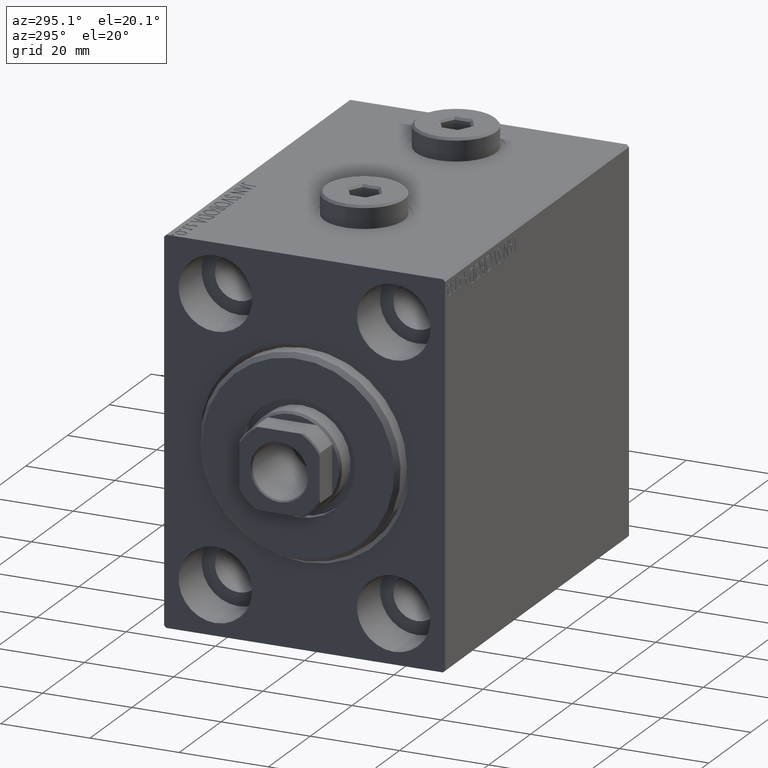
[diagram: clean part render]
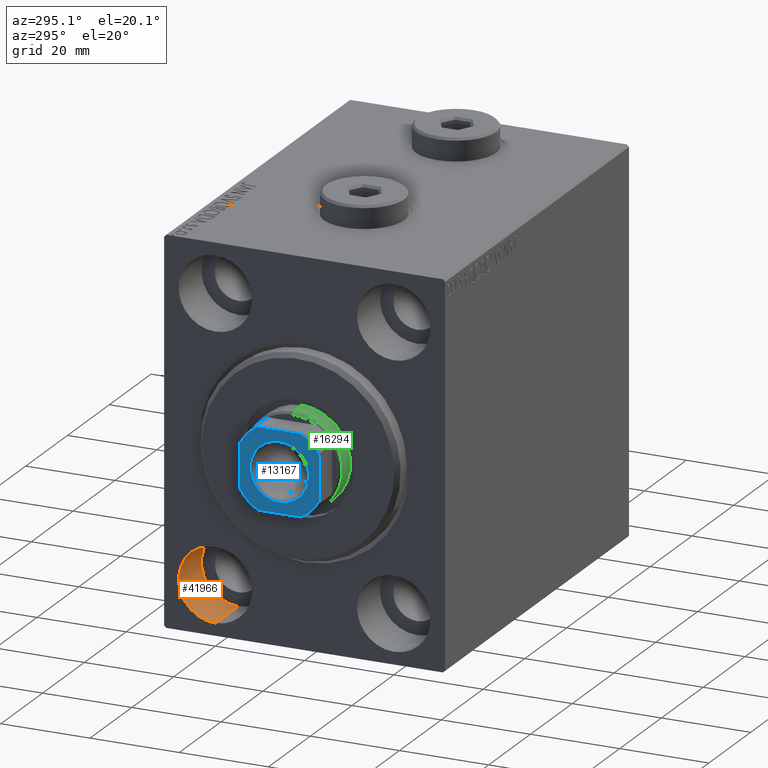
[diagram: same view with three faces highlighted in distinct colors, each labeled with its STEP entity id]
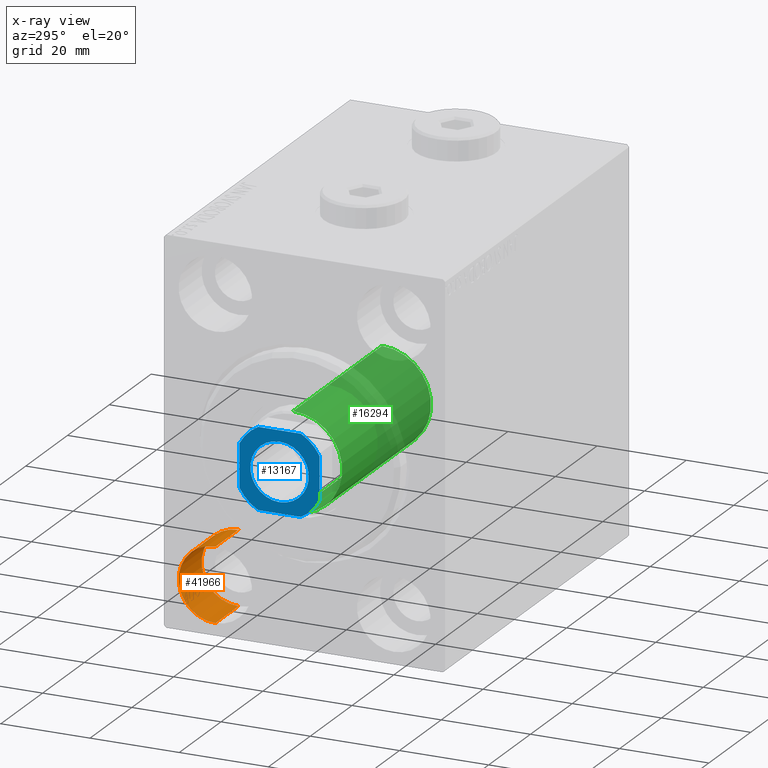
[diagram: x-ray of the same camera — body ghosted, the three highlighted faces saturated]
A machine part, auxiliary view with three faces highlighted in distinct colors.
The next image is the same camera in x-ray (body ghosted, the three faces saturated) — at least one of them is partly hidden behind the body in this view.
Their STEP definitions:

[orange] entity #41966 — the highlighted cylindrical surface (partial cylindrical patch) has radius 8.25 mm, axis along (-1, -0, -0).
#1144 = CARTESIAN_POINT ( 'NONE',  ( 11.00000000000000000, 19.99999999999999645, -39.74999999999999289 ) ) ;
#1146 = AXIS2_PLACEMENT_3D ( 'NONE', #37431, #23502, #33120 ) ;
#1193 = CARTESIAN_POINT ( 'NONE',  ( 0.000000000000000000, 19.99999999999999645, -23.24999999999999289 ) ) ;
#1728 = CYLINDRICAL_SURFACE ( 'NONE', #15350, 8.250000000000000000 ) ;
#3693 = VERTEX_POINT ( 'NONE', #40290 ) ;
#4302 = DIRECTION ( 'NONE',  ( -1.000000000000000000, 0.000000000000000000, 0.000000000000000000 ) ) ;
#5246 = LINE ( 'NONE', #36774, #18973 ) ;
#8792 = DIRECTION ( 'NONE',  ( -1.000000000000000000, -0.000000000000000000, -0.000000000000000000 ) ) ;
#11644 = DIRECTION ( 'NONE',  ( -1.000000000000000000, -0.000000000000000000, -0.000000000000000000 ) ) ;
#13720 = DIRECTION ( 'NONE',  ( -1.000000000000000000, -0.000000000000000000, -0.000000000000000000 ) ) ;
#14954 = EDGE_CURVE ( 'NONE', #20004, #41647, #36908, .T. ) ;
#15350 = AXIS2_PLACEMENT_3D ( 'NONE', #15664, #8792, #28712 ) ;
#15664 = CARTESIAN_POINT ( 'NONE',  ( 11.00000000000000000, 19.99999999999999645, -31.49999999999999289 ) ) ;
#16808 = VERTEX_POINT ( 'NONE', #1193 ) ;
#17660 = ORIENTED_EDGE ( 'NONE', *, *, #18151, .T. ) ;
#18151 = EDGE_CURVE ( 'NONE', #16808, #3693, #28283, .T. ) ;
#18634 = CARTESIAN_POINT ( 'NONE',  ( 11.00000000000000000, 19.99999999999999645, -23.24999999999999289 ) ) ;
#18973 = VECTOR ( 'NONE', #11644, 1000.000000000000000 ) ;
#19479 = ORIENTED_EDGE ( 'NONE', *, *, #14954, .F. ) ;
#20004 = VERTEX_POINT ( 'NONE', #18634 ) ;
#20338 = EDGE_LOOP ( 'NONE', ( #27263, #19479, #41446, #17660 ) ) ;
#23502 = DIRECTION ( 'NONE',  ( -1.000000000000000000, 0.000000000000000000, 0.000000000000000000 ) ) ;
#25115 = DIRECTION ( 'NONE',  ( 0.000000000000000000, 0.000000000000000000, 1.000000000000000000 ) ) ;
#27263 = ORIENTED_EDGE ( 'NONE', *, *, #40655, .F. ) ;
#28283 = CIRCLE ( 'NONE', #37768, 8.250000000000000000 ) ;
#28574 = VECTOR ( 'NONE', #13720, 1000.000000000000000 ) ;
#28712 = DIRECTION ( 'NONE',  ( 0.000000000000000000, 0.000000000000000000, 1.000000000000000000 ) ) ;
#30655 = CARTESIAN_POINT ( 'NONE',  ( 11.00000000000000000, 19.99999999999999645, -23.24999999999999289 ) ) ;
#33043 = FACE_OUTER_BOUND ( 'NONE', #20338, .T. ) ;
#33120 = DIRECTION ( 'NONE',  ( 0.000000000000000000, 0.000000000000000000, 1.000000000000000000 ) ) ;
#36774 = CARTESIAN_POINT ( 'NONE',  ( 11.00000000000000000, 19.99999999999999645, -39.74999999999999289 ) ) ;
#36908 = CIRCLE ( 'NONE', #1146, 8.250000000000000000 ) ;
#37431 = CARTESIAN_POINT ( 'NONE',  ( 11.00000000000000000, 19.99999999999999645, -31.49999999999999289 ) ) ;
#37768 = AXIS2_PLACEMENT_3D ( 'NONE', #42922, #4302, #25115 ) ;
#40290 = CARTESIAN_POINT ( 'NONE',  ( 0.000000000000000000, 19.99999999999999645, -39.74999999999999289 ) ) ;
#40655 = EDGE_CURVE ( 'NONE', #41647, #3693, #5246, .T. ) ;
#41446 = ORIENTED_EDGE ( 'NONE', *, *, #43911, .T. ) ;
#41647 = VERTEX_POINT ( 'NONE', #1144 ) ;
#41966 = ADVANCED_FACE ( 'NONE', ( #33043 ), #1728, .F. ) ;
#42922 = CARTESIAN_POINT ( 'NONE',  ( 0.000000000000000000, 19.99999999999999645, -31.49999999999999289 ) ) ;
#43911 = EDGE_CURVE ( 'NONE', #20004, #16808, #45030, .T. ) ;
#45030 = LINE ( 'NONE', #30655, #28574 ) ;

[blue] entity #13167 — the highlighted planar face has unit normal (-1, 0, 0).
#8 = CARTESIAN_POINT ( 'NONE',  ( 0.000000000000000000, 0.000000000000000000, 88.00000000000000000 ) ) ;
#196 = DIRECTION ( 'NONE',  ( -1.000000000000000000, -0.000000000000000000, -0.000000000000000000 ) ) ;
#1023 = ORIENTED_EDGE ( 'NONE', *, *, #12149, .T. ) ;
#1041 = FACE_BOUND ( 'NONE', #23882, .T. ) ;
#1279 = AXIS2_PLACEMENT_3D ( 'NONE', #8, #21484, #4100 ) ;
#2140 = ORIENTED_EDGE ( 'NONE', *, *, #23702, .T. ) ;
#2188 = DIRECTION ( 'NONE',  ( 1.927470528863119049E-16, -1.000000000000000000, 0.000000000000000000 ) ) ;
#2948 = DIRECTION ( 'NONE',  ( 1.000000000000000000, 0.000000000000000000, 0.000000000000000000 ) ) ;
#3497 = AXIS2_PLACEMENT_3D ( 'NONE', #44769, #29939, #2948 ) ;
#3634 = CARTESIAN_POINT ( 'NONE',  ( -9.000000000000001776, 8.999999999999998224, 88.00000000000000000 ) ) ;
#3878 = ORIENTED_EDGE ( 'NONE', *, *, #40808, .T. ) ;
#4100 = DIRECTION ( 'NONE',  ( 1.000000000000000000, 0.000000000000000000, 0.000000000000000000 ) ) ;
#4151 = AXIS2_PLACEMENT_3D ( 'NONE', #4780, #11862, #29704 ) ;
#4780 = CARTESIAN_POINT ( 'NONE',  ( 0.000000000000000000, 0.000000000000000000, 88.00000000000000000 ) ) ;
#4800 = VERTEX_POINT ( 'NONE', #8693 ) ;
#5179 = EDGE_CURVE ( 'NONE', #5378, #26426, #9775, .T. ) ;
#5378 = VERTEX_POINT ( 'NONE', #33457 ) ;
#5577 = CARTESIAN_POINT ( 'NONE',  ( -9.000000000000001776, 4.800000000000007816, 88.00000000000000000 ) ) ;
#5983 = VERTEX_POINT ( 'NONE', #20487 ) ;
#7192 = VERTEX_POINT ( 'NONE', #5577 ) ;
#7218 = DIRECTION ( 'NONE',  ( -0.000000000000000000, 0.000000000000000000, 1.000000000000000000 ) ) ;
#8352 = PLANE ( 'NONE',  #23746 ) ;
#8424 = LINE ( 'NONE', #39748, #28126 ) ;
#8575 = DIRECTION ( 'NONE',  ( -0.000000000000000000, 0.000000000000000000, 1.000000000000000000 ) ) ;
#8693 = CARTESIAN_POINT ( 'NONE',  ( 4.799999999999974065, -9.000000000000001776, 88.00000000000000000 ) ) ;
#9773 = CIRCLE ( 'NONE', #42615, 10.19999999999998863 ) ;
#9775 = CIRCLE ( 'NONE', #30934, 6.550000000000000711 ) ;
#9839 = EDGE_CURVE ( 'NONE', #10987, #37161, #9773, .T. ) ;
#10686 = CARTESIAN_POINT ( 'NONE',  ( -8.999999999999998224, -4.799999999999960743, 88.00000000000000000 ) ) ;
#10987 = VERTEX_POINT ( 'NONE', #33616 ) ;
#11862 = DIRECTION ( 'NONE',  ( -0.000000000000000000, 0.000000000000000000, 1.000000000000000000 ) ) ;
#12149 = EDGE_CURVE ( 'NONE', #31326, #4800, #8424, .T. ) ;
#12461 = CARTESIAN_POINT ( 'NONE',  ( -9.000000000000001776, 8.999999999999998224, 88.00000000000000000 ) ) ;
#13167 = ADVANCED_FACE ( 'NONE', ( #1041, #35786 ), #8352, .T. ) ;
#13202 = CARTESIAN_POINT ( 'NONE',  ( 4.799999999999979394, 8.999999999999998224, 88.00000000000000000 ) ) ;
#13421 = LINE ( 'NONE', #14316, #45031 ) ;
#14316 = CARTESIAN_POINT ( 'NONE',  ( 8.999999999999998224, 8.999999999999998224, 88.00000000000000000 ) ) ;
#15299 = DIRECTION ( 'NONE',  ( 1.000000000000000000, 0.000000000000000000, 0.000000000000000000 ) ) ;
#16139 = DIRECTION ( 'NONE',  ( 1.000000000000000000, 0.000000000000000000, 0.000000000000000000 ) ) ;
#17367 = CIRCLE ( 'NONE', #3497, 10.19999999999997975 ) ;
#18351 = EDGE_CURVE ( 'NONE', #5983, #10987, #13421, .T. ) ;
#18750 = CIRCLE ( 'NONE', #4151, 10.20000000000000462 ) ;
#20487 = CARTESIAN_POINT ( 'NONE',  ( 9.000000000000001776, -4.799999999999974065, 88.00000000000000000 ) ) ;
#20993 = CIRCLE ( 'NONE', #1279, 6.550000000000000711 ) ;
#21484 = DIRECTION ( 'NONE',  ( 0.000000000000000000, -0.000000000000000000, -1.000000000000000000 ) ) ;
#21853 = DIRECTION ( 'NONE',  ( 1.000000000000000000, 0.000000000000000000, 0.000000000000000000 ) ) ;
#23174 = ORIENTED_EDGE ( 'NONE', *, *, #5179, .T. ) ;
#23702 = EDGE_CURVE ( 'NONE', #26426, #5378, #20993, .T. ) ;
#23746 = AXIS2_PLACEMENT_3D ( 'NONE', #36691, #8575, #21853 ) ;
#23882 = EDGE_LOOP ( 'NONE', ( #2140, #23174 ) ) ;
#24288 = CARTESIAN_POINT ( 'NONE',  ( -4.799999999999956302, -9.000000000000001776, 88.00000000000000000 ) ) ;
#24568 = EDGE_CURVE ( 'NONE', #27708, #31326, #17367, .T. ) ;
#24832 = CARTESIAN_POINT ( 'NONE',  ( 0.000000000000000000, 0.000000000000000000, 88.00000000000000000 ) ) ;
#25314 = DIRECTION ( 'NONE',  ( -0.000000000000000000, 0.000000000000000000, 1.000000000000000000 ) ) ;
#26426 = VERTEX_POINT ( 'NONE', #42369 ) ;
#27375 = EDGE_CURVE ( 'NONE', #40343, #7192, #18750, .T. ) ;
#27708 = VERTEX_POINT ( 'NONE', #10686 ) ;
#28126 = VECTOR ( 'NONE', #15299, 1000.000000000000000 ) ;
#28277 = DIRECTION ( 'NONE',  ( -1.927470528863119049E-16, 1.000000000000000000, -0.000000000000000000 ) ) ;
#28933 = ORIENTED_EDGE ( 'NONE', *, *, #9839, .T. ) ;
#28973 = ORIENTED_EDGE ( 'NONE', *, *, #24568, .T. ) ;
#29419 = EDGE_CURVE ( 'NONE', #37161, #40343, #41801, .T. ) ;
#29661 = CARTESIAN_POINT ( 'NONE',  ( 0.000000000000000000, 0.000000000000000000, 88.00000000000000000 ) ) ;
#29704 = DIRECTION ( 'NONE',  ( 1.000000000000000000, 0.000000000000000000, 0.000000000000000000 ) ) ;
#29939 = DIRECTION ( 'NONE',  ( -0.000000000000000000, 0.000000000000000000, 1.000000000000000000 ) ) ;
#30468 = ORIENTED_EDGE ( 'NONE', *, *, #29419, .T. ) ;
#30934 = AXIS2_PLACEMENT_3D ( 'NONE', #37158, #33514, #16139 ) ;
#31245 = DIRECTION ( 'NONE',  ( 1.000000000000000000, 0.000000000000000000, 0.000000000000000000 ) ) ;
#31326 = VERTEX_POINT ( 'NONE', #24288 ) ;
#33457 = CARTESIAN_POINT ( 'NONE',  ( -6.550000000000000711, 8.021436534415164234E-16, 88.00000000000000000 ) ) ;
#33514 = DIRECTION ( 'NONE',  ( 0.000000000000000000, -0.000000000000000000, -1.000000000000000000 ) ) ;
#33616 = CARTESIAN_POINT ( 'NONE',  ( 8.999999999999998224, 4.799999999999978506, 88.00000000000000000 ) ) ;
#33901 = CARTESIAN_POINT ( 'NONE',  ( -4.800000000000012257, 8.999999999999998224, 88.00000000000000000 ) ) ;
#35031 = AXIS2_PLACEMENT_3D ( 'NONE', #29661, #25314, #42676 ) ;
#35786 = FACE_OUTER_BOUND ( 'NONE', #38012, .T. ) ;
#36691 = CARTESIAN_POINT ( 'NONE',  ( 0.000000000000000000, 0.000000000000000000, 88.00000000000000000 ) ) ;
#37158 = CARTESIAN_POINT ( 'NONE',  ( 0.000000000000000000, 0.000000000000000000, 88.00000000000000000 ) ) ;
#37161 = VERTEX_POINT ( 'NONE', #13202 ) ;
#37190 = ORIENTED_EDGE ( 'NONE', *, *, #27375, .T. ) ;
#37234 = CIRCLE ( 'NONE', #35031, 10.19999999999998863 ) ;
#37468 = EDGE_CURVE ( 'NONE', #7192, #27708, #43106, .T. ) ;
#38012 = EDGE_LOOP ( 'NONE', ( #44150, #28933, #30468, #37190, #42830, #28973, #1023, #3878 ) ) ;
#39748 = CARTESIAN_POINT ( 'NONE',  ( -8.999999999999998224, -9.000000000000001776, 88.00000000000000000 ) ) ;
#40086 = VECTOR ( 'NONE', #2188, 1000.000000000000000 ) ;
#40343 = VERTEX_POINT ( 'NONE', #33901 ) ;
#40808 = EDGE_CURVE ( 'NONE', #4800, #5983, #37234, .T. ) ;
#41801 = LINE ( 'NONE', #3634, #42881 ) ;
#42369 = CARTESIAN_POINT ( 'NONE',  ( 6.550000000000000711, 0.000000000000000000, 88.00000000000000000 ) ) ;
#42615 = AXIS2_PLACEMENT_3D ( 'NONE', #24832, #7218, #31245 ) ;
#42676 = DIRECTION ( 'NONE',  ( 1.000000000000000000, 0.000000000000000000, 0.000000000000000000 ) ) ;
#42830 = ORIENTED_EDGE ( 'NONE', *, *, #37468, .T. ) ;
#42881 = VECTOR ( 'NONE', #196, 1000.000000000000000 ) ;
#43106 = LINE ( 'NONE', #12461, #40086 ) ;
#44150 = ORIENTED_EDGE ( 'NONE', *, *, #18351, .T. ) ;
#44769 = CARTESIAN_POINT ( 'NONE',  ( 0.000000000000000000, 0.000000000000000000, 88.00000000000000000 ) ) ;
#45031 = VECTOR ( 'NONE', #28277, 1000.000000000000000 ) ;

[green] entity #16294 — the highlighted cylindrical surface (partial cylindrical patch) has radius 11 mm, axis along (1, -0, -0).
#6111 = DIRECTION ( 'NONE',  ( -0.000000000000000000, -0.000000000000000000, -1.000000000000000000 ) ) ;
#7541 = DIRECTION ( 'NONE',  ( -0.000000000000000000, -0.000000000000000000, -1.000000000000000000 ) ) ;
#7976 = DIRECTION ( 'NONE',  ( 1.000000000000000000, 0.000000000000000000, 0.000000000000000000 ) ) ;
#8626 = CARTESIAN_POINT ( 'NONE',  ( -11.00000000000000000, 0.000000000000000000, 81.99999999999998579 ) ) ;
#11235 = EDGE_LOOP ( 'NONE', ( #35236, #16914, #42156, #35614 ) ) ;
#12131 = AXIS2_PLACEMENT_3D ( 'NONE', #38861, #7541, #14854 ) ;
#12364 = DIRECTION ( 'NONE',  ( 1.000000000000000000, 0.000000000000000000, 0.000000000000000000 ) ) ;
#12742 = EDGE_CURVE ( 'NONE', #30819, #29849, #37566, .T. ) ;
#12905 = AXIS2_PLACEMENT_3D ( 'NONE', #43628, #32682, #7976 ) ;
#14854 = DIRECTION ( 'NONE',  ( -1.000000000000000000, 0.000000000000000000, 0.000000000000000000 ) ) ;
#14927 = LINE ( 'NONE', #42584, #18018 ) ;
#16294 = ADVANCED_FACE ( 'NONE', ( #39762 ), #32693, .T. ) ;
#16914 = ORIENTED_EDGE ( 'NONE', *, *, #27406, .T. ) ;
#17716 = EDGE_CURVE ( 'NONE', #32700, #29849, #14927, .T. ) ;
#18018 = VECTOR ( 'NONE', #42365, 1000.000000000000000 ) ;
#22502 = CARTESIAN_POINT ( 'NONE',  ( 11.00000000000000000, 1.347111479062088405E-15, 81.49999999999997158 ) ) ;
#25908 = EDGE_CURVE ( 'NONE', #38052, #30819, #39953, .T. ) ;
#27406 = EDGE_CURVE ( 'NONE', #32700, #38052, #43572, .T. ) ;
#29849 = VERTEX_POINT ( 'NONE', #34459 ) ;
#30819 = VERTEX_POINT ( 'NONE', #42702 ) ;
#31874 = VECTOR ( 'NONE', #6111, 1000.000000000000000 ) ;
#32682 = DIRECTION ( 'NONE',  ( 0.000000000000000000, 0.000000000000000000, -1.000000000000000000 ) ) ;
#32693 = CYLINDRICAL_SURFACE ( 'NONE', #12131, 11.00000000000000000 ) ;
#32700 = VERTEX_POINT ( 'NONE', #22502 ) ;
#34459 = CARTESIAN_POINT ( 'NONE',  ( 11.00000000000000000, 1.347111479062088405E-15, 39.00000000000000000 ) ) ;
#35236 = ORIENTED_EDGE ( 'NONE', *, *, #17716, .F. ) ;
#35614 = ORIENTED_EDGE ( 'NONE', *, *, #12742, .T. ) ;
#37505 = CARTESIAN_POINT ( 'NONE',  ( 0.000000000000000000, 0.000000000000000000, 39.00000000000000000 ) ) ;
#37566 = CIRCLE ( 'NONE', #40508, 11.00000000000000000 ) ;
#38052 = VERTEX_POINT ( 'NONE', #39943 ) ;
#38861 = CARTESIAN_POINT ( 'NONE',  ( 0.000000000000000000, 0.000000000000000000, 81.99999999999998579 ) ) ;
#39762 = FACE_OUTER_BOUND ( 'NONE', #11235, .T. ) ;
#39943 = CARTESIAN_POINT ( 'NONE',  ( -11.00000000000000000, 0.000000000000000000, 81.49999999999997158 ) ) ;
#39953 = LINE ( 'NONE', #8626, #31874 ) ;
#40508 = AXIS2_PLACEMENT_3D ( 'NONE', #37505, #44131, #12364 ) ;
#42156 = ORIENTED_EDGE ( 'NONE', *, *, #25908, .T. ) ;
#42365 = DIRECTION ( 'NONE',  ( -0.000000000000000000, -0.000000000000000000, -1.000000000000000000 ) ) ;
#42584 = CARTESIAN_POINT ( 'NONE',  ( 11.00000000000000000, 1.347111479062088405E-15, 81.99999999999998579 ) ) ;
#42702 = CARTESIAN_POINT ( 'NONE',  ( -11.00000000000000000, 0.000000000000000000, 39.00000000000000000 ) ) ;
#43572 = CIRCLE ( 'NONE', #12905, 11.00000000000000000 ) ;
#43628 = CARTESIAN_POINT ( 'NONE',  ( 0.000000000000000000, 0.000000000000000000, 81.49999999999997158 ) ) ;
#44131 = DIRECTION ( 'NONE',  ( 0.000000000000000000, 0.000000000000000000, 1.000000000000000000 ) ) ;